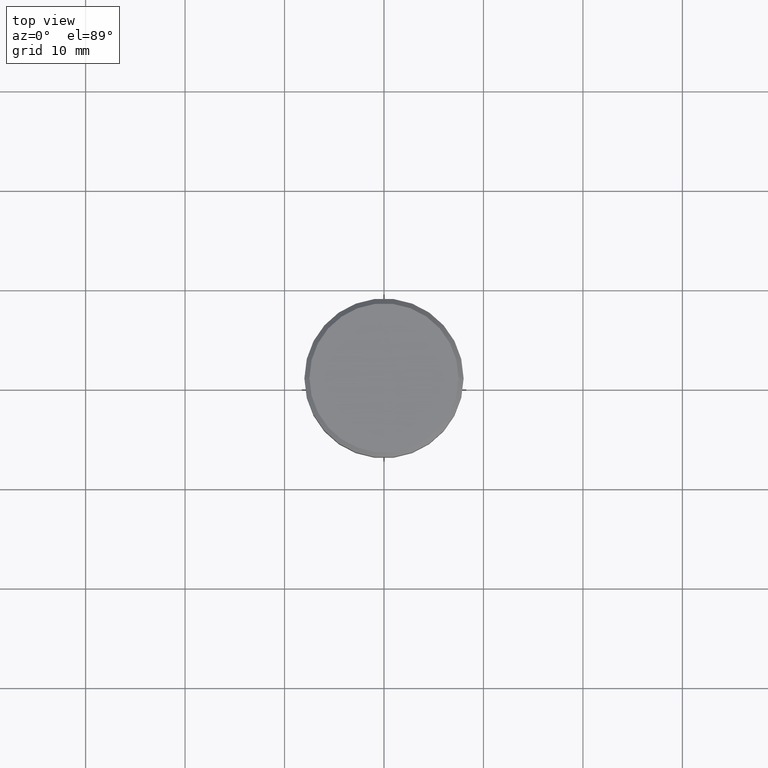
[diagram: clean part render]
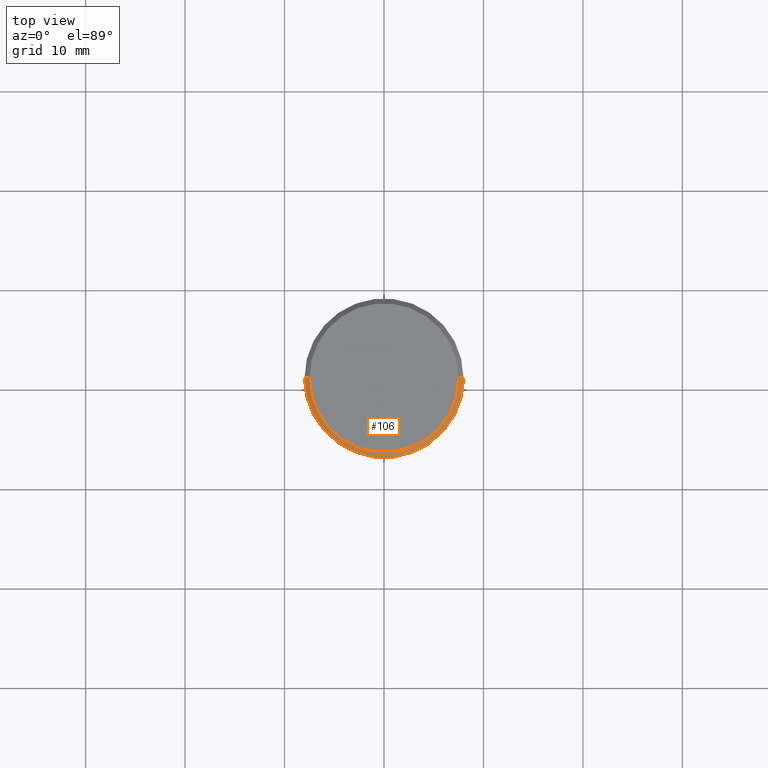
[diagram: same view with one face highlighted and labeled with its STEP entity id]
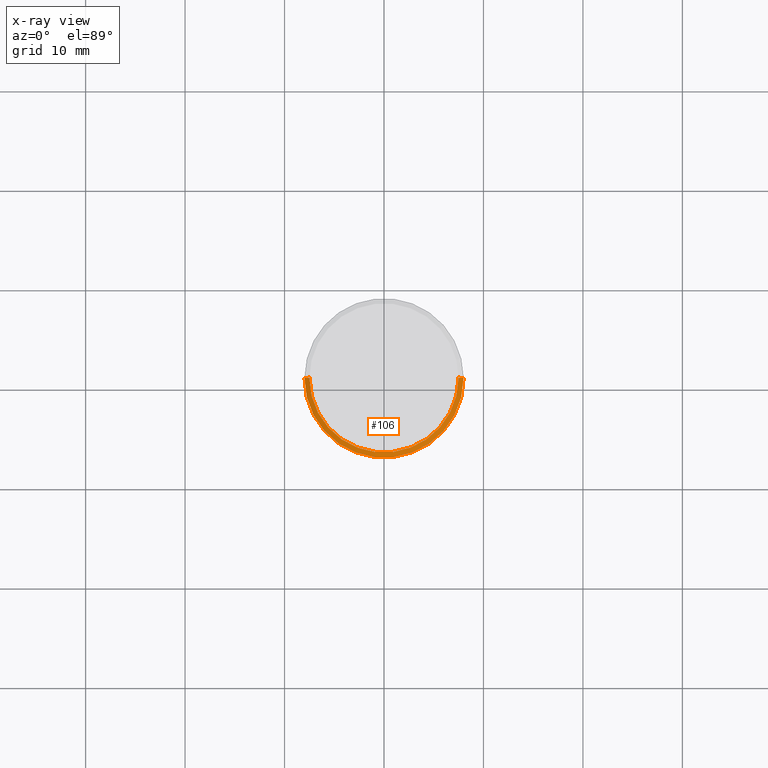
[diagram: x-ray of the same camera — body ghosted, the highlighted face saturated]
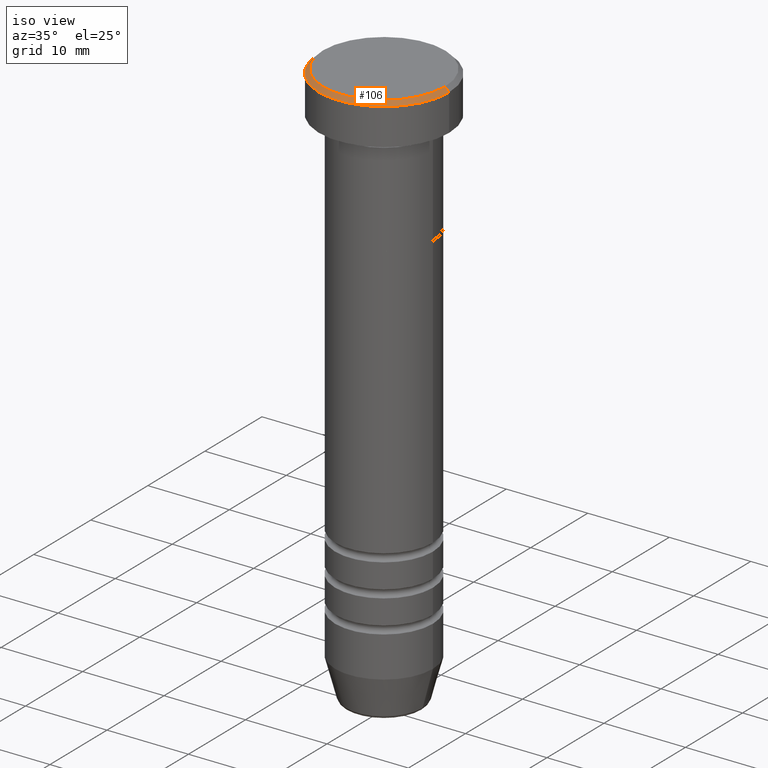
[diagram: same view with one face highlighted and labeled with its STEP entity id]
A machine part, top view. The second image highlights one B-rep face of the part: STEP entity #106.
The next image is the same camera in x-ray: the body ghosted, the highlighted face saturated — about 0% of this face is hidden behind the body in this view.
A second angle (iso view) of the same face is appended — the face is thin or edge-on in the first view.
In plain terms, the highlighted conical surface has half-angle 45 deg.
Its self-contained STEP definition (entity closure, byte-faithful):
#14 = VERTEX_POINT ( 'NONE', #240 ) ;
#36 = DIRECTION ( 'NONE',  ( -1.000000000000000000, 0.000000000000000000, 0.000000000000000000 ) ) ;
#82 = CARTESIAN_POINT ( 'NONE',  ( 0.000000000000000000, 0.000000000000000000, 0.000000000000000000 ) ) ;
#96 = DIRECTION ( 'NONE',  ( 1.000000000000000000, 0.000000000000000000, 0.000000000000000000 ) ) ;
#106 = ADVANCED_FACE ( 'NONE', ( #451 ), #278, .T. ) ;
#113 = LINE ( 'NONE', #843, #1046 ) ;
#127 = CARTESIAN_POINT ( 'NONE',  ( -7.500000000000009770, 0.000000000000000000, 0.000000000000000000 ) ) ;
#136 = CARTESIAN_POINT ( 'NONE',  ( -8.000000000000000000, 9.797174393178825657E-16, -0.4999999999999935052 ) ) ;
#197 = ORIENTED_EDGE ( 'NONE', *, *, #603, .F. ) ;
#233 = ORIENTED_EDGE ( 'NONE', *, *, #367, .T. ) ;
#240 = CARTESIAN_POINT ( 'NONE',  ( 7.500000000000009770, 9.491012693391993703E-16, 0.000000000000000000 ) ) ;
#241 = CARTESIAN_POINT ( 'NONE',  ( 8.000000000000000000, 0.000000000000000000, -0.4999999999999935052 ) ) ;
#278 = CONICAL_SURFACE ( 'NONE', #828, 7.500000000000009770, 0.7853981633974447263 ) ;
#290 = VECTOR ( 'NONE', #778, 1000.000000000000114 ) ;
#295 = EDGE_CURVE ( 'NONE', #14, #597, #113, .T. ) ;
#367 = EDGE_CURVE ( 'NONE', #756, #494, #852, .T. ) ;
#439 = AXIS2_PLACEMENT_3D ( 'NONE', #82, #990, #578 ) ;
#451 = FACE_OUTER_BOUND ( 'NONE', #834, .T. ) ;
#494 = VERTEX_POINT ( 'NONE', #136 ) ;
#502 = ORIENTED_EDGE ( 'NONE', *, *, #295, .F. ) ;
#578 = DIRECTION ( 'NONE',  ( 1.000000000000000000, 0.000000000000000000, 0.000000000000000000 ) ) ;
#581 = CARTESIAN_POINT ( 'NONE',  ( 0.000000000000000000, 0.000000000000000000, -0.4999999999999935052 ) ) ;
#597 = VERTEX_POINT ( 'NONE', #241 ) ;
#603 = EDGE_CURVE ( 'NONE', #756, #14, #866, .T. ) ;
#638 = EDGE_CURVE ( 'NONE', #597, #494, #980, .T. ) ;
#751 = AXIS2_PLACEMENT_3D ( 'NONE', #581, #984, #96 ) ;
#756 = VERTEX_POINT ( 'NONE', #127 ) ;
#768 = ORIENTED_EDGE ( 'NONE', *, *, #638, .F. ) ;
#778 = DIRECTION ( 'NONE',  ( -0.7071067811865451302, 0.000000000000000000, -0.7071067811865500152 ) ) ;
#779 = DIRECTION ( 'NONE',  ( 0.000000000000000000, 0.000000000000000000, -1.000000000000000000 ) ) ;
#828 = AXIS2_PLACEMENT_3D ( 'NONE', #936, #779, #36 ) ;
#834 = EDGE_LOOP ( 'NONE', ( #502, #197, #233, #768 ) ) ;
#843 = CARTESIAN_POINT ( 'NONE',  ( 7.500000000000009770, 9.184850993605161750E-16, 0.000000000000000000 ) ) ;
#852 = LINE ( 'NONE', #924, #290 ) ;
#866 = CIRCLE ( 'NONE', #439, 7.500000000000009770 ) ;
#924 = CARTESIAN_POINT ( 'NONE',  ( -7.500000000000009770, 0.000000000000000000, 0.000000000000000000 ) ) ;
#930 = DIRECTION ( 'NONE',  ( 0.7071067811865451302, 8.659560562354904508E-17, -0.7071067811865500152 ) ) ;
#936 = CARTESIAN_POINT ( 'NONE',  ( 0.000000000000000000, 0.000000000000000000, 0.000000000000000000 ) ) ;
#980 = CIRCLE ( 'NONE', #751, 8.000000000000000000 ) ;
#984 = DIRECTION ( 'NONE',  ( 0.000000000000000000, 0.000000000000000000, -1.000000000000000000 ) ) ;
#990 = DIRECTION ( 'NONE',  ( -0.000000000000000000, -0.000000000000000000, 1.000000000000000000 ) ) ;
#1046 = VECTOR ( 'NONE', #930, 1000.000000000000114 ) ;